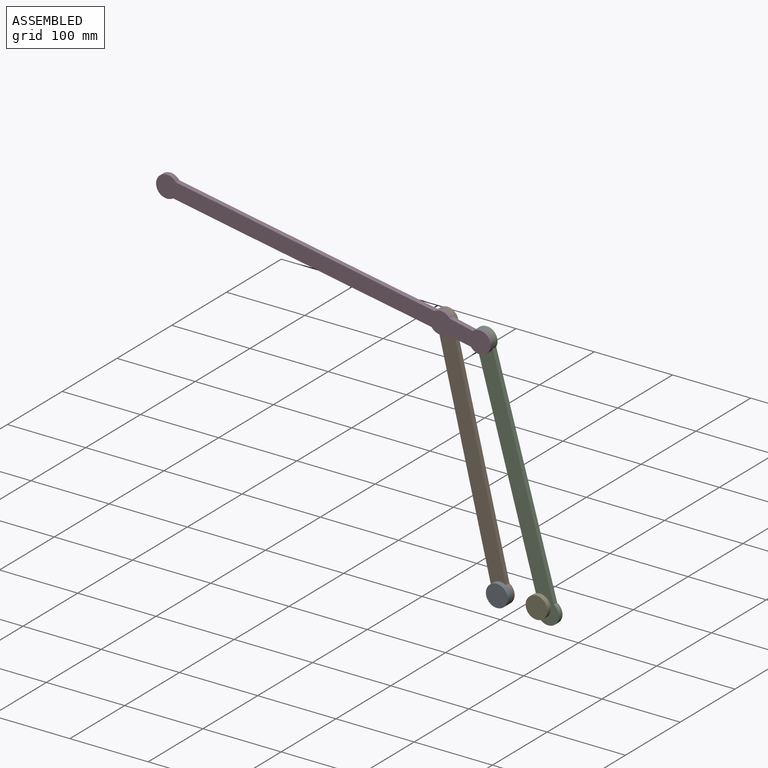
[diagram: assembled view]
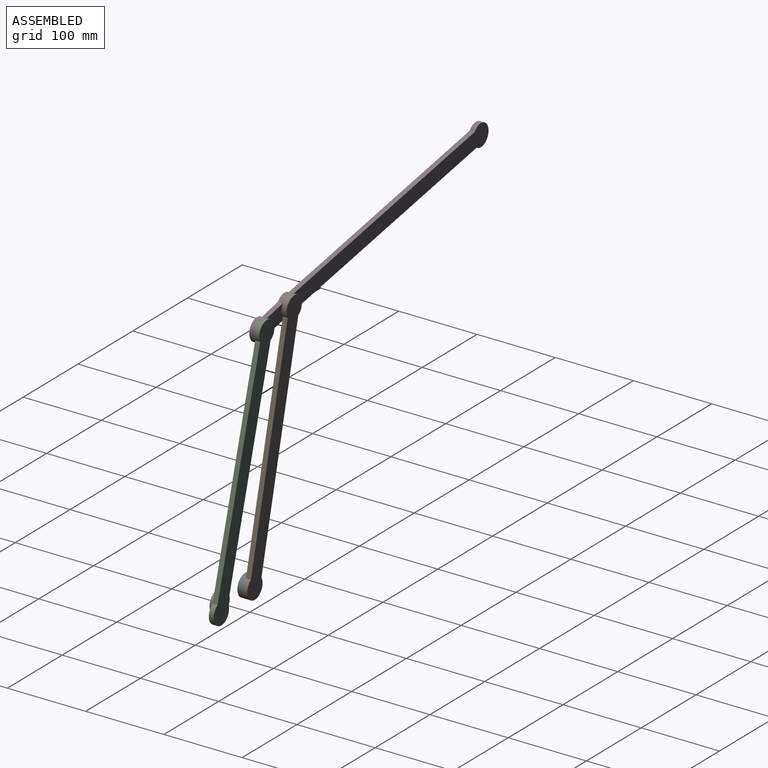
[diagram: assembled view, second angle]
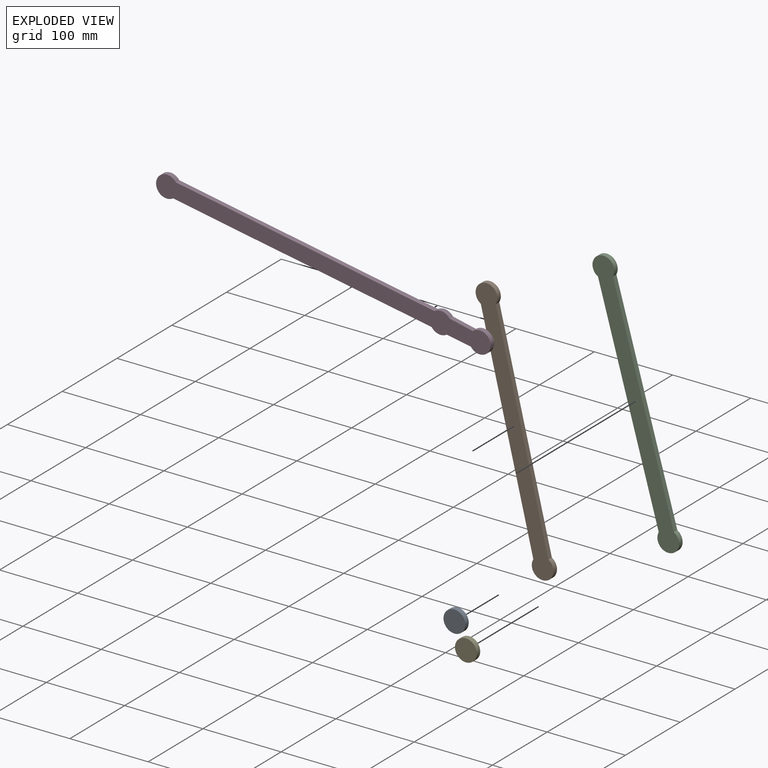
[diagram: exploded view]
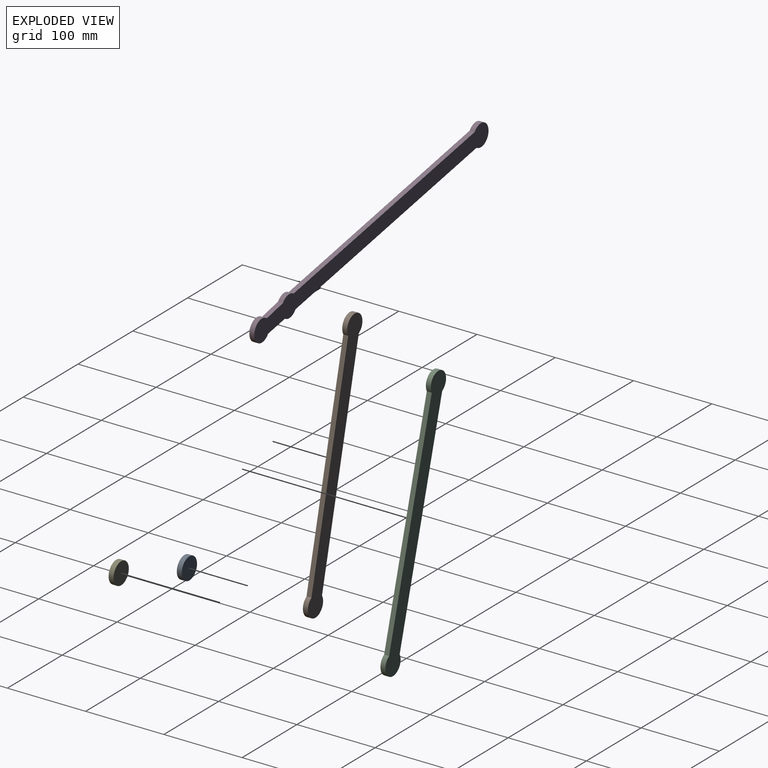
[diagram: exploded view, second angle]
ASSEMBLY  parts=5 mates=4
PART A: 3 faces, bbox 27.8x6.4x27.8 mm
  f0: cylinder r=13.92mm len=27.85mm, axis (0,1,0), area 555.6mm2, adj f1,f2
  f1: plane 27.85x27.85mm, normal (0,-1,0), area 609.1mm2, adj f0
  f2: plane 27.85x27.85mm, normal (0,1,0), area 609.1mm2, adj f0
PART B: 8 faces, bbox 27.8x6.4x332.6 mm
  f0: plane 6.35x0.09mm, normal (0,0,1), area 0.6mm2, adj f1,f5,f6,f7
  f1: cylinder r=13.92mm len=27.85mm, axis (0,-1,0), area 417.5mm2, adj f0,f2,f6,f7
  f2: plane 6.35x0.09mm, normal (0,0,1), area 0.6mm2, adj f1,f3,f6,f7
  f3: plane 285.11x6.35mm, normal (-1,0,0), area 1810.4mm2, adj f2,f4,f6,f7
  f4: cylinder r=13.92mm len=27.85mm, axis (0,-1,0), area 415.8mm2, adj f3,f5,f6,f7
  f5: plane 285.11x6.35mm, normal (1,0,0), area 1810.4mm2, adj f0,f4,f6,f7
  f6: plane 332.65x27.85mm, normal (0,1,0), area 6748.3mm2, adj f0,f1,f2,f3,f4,f5
  f7: plane 332.65x27.85mm, normal (0,-1,0), area 6748.3mm2, adj f0,f1,f2,f3,f4,f5
PART C: 7 faces, bbox 27.8x6.4x332.6 mm
  f0: cylinder r=13.92mm len=27.85mm, axis (0,-1,0), area 413.8mm2, adj f1,f4,f5,f6
  f1: plane 285.43x6.35mm, normal (1,0,0), area 1812.5mm2, adj f0,f2,f5,f6
  f2: cylinder r=13.92mm len=27.85mm, axis (0,-1,0), area 416.7mm2, adj f1,f3,f5,f6
  f3: plane 6.35x0.09mm, normal (0,0,1), area 0.6mm2, adj f2,f4,f5,f6
  f4: plane 285.11x6.35mm, normal (-1,0,0), area 1810.4mm2, adj f0,f3,f5,f6
  f5: plane 332.65x27.85mm, normal (0,1,0), area 6779.6mm2, adj f0,f1,f2,f3,f4
  f6: plane 332.65x27.85mm, normal (0,-1,0), area 6779.6mm2, adj f0,f1,f2,f3,f4
PART D: 13 faces, bbox 434.2x6.4x27.8 mm
  f0: plane 6.35x0.09mm, normal (1,0,0), area 0.6mm2, adj f1,f10,f11,f12
  f1: cylinder r=13.92mm len=19.78mm, axis (0,1,0), area 139.7mm2, adj f0,f2,f11,f12
  f2: plane 6.35x0.09mm, normal (-1,0,0), area 0.6mm2, adj f1,f3,f11,f12
  f3: plane 31.02x6.35mm, normal (0,0,-1), area 196.9mm2, adj f2,f4,f11,f12
  f4: plane 6.35x0.09mm, normal (1,0,0), area 0.6mm2, adj f3,f5,f11,f12
  f5: cylinder r=13.92mm len=27.85mm, axis (0,1,0), area 425.6mm2, adj f4,f6,f11,f12
  f6: plane 30.25x6.35mm, normal (0.03,0,1), area 192.2mm2, adj f5,f7,f11,f12
  f7: cylinder r=13.92mm len=19.6mm, axis (0,1,0), area 138.1mm2, adj f6,f8,f11,f12
  f8: plane 336x6.35mm, normal (0,0,1), area 2133.6mm2, adj f7,f9,f11,f12
  f9: cylinder r=13.92mm len=27.85mm, axis (0,1,0), area 415.8mm2, adj f8,f10,f11,f12
  f10: plane 335.91x6.35mm, normal (0,0,-1), area 2133mm2, adj f0,f9,f11,f12
  f11: plane 434.25x27.85mm, normal (0,-1,0), area 8851mm2, adj f0,f1,f2,f3,f4,f5,f6,f7
  f12: plane 434.25x27.85mm, normal (0,1,0), area 8851mm2, adj f0,f1,f2,f3,f4,f5,f6,f7
PART E: 3 faces, bbox 27.8x6.4x27.8 mm
  f0: cylinder r=13.92mm len=27.85mm, axis (0,1,0), area 555.6mm2, adj f1,f2
  f1: plane 27.85x27.85mm, normal (0,-1,0), area 609.1mm2, adj f0
  f2: plane 27.85x27.85mm, normal (0,1,0), area 609.1mm2, adj f0
PLACE A at identity fixed
PLACE B rot(axis=(0,-1,0),13.6deg) t=(0,0,0)mm
PLACE C rot(axis=(0,-1,0),15.8deg) t=(12.29,0,-20.01)mm
PLACE D rot(axis=(0,1,0),10.3deg) t=(-126.48,0,-3.62)mm
PLACE E at identity fixed
MATE revolute B.f1 <-> D.f7  axis (0,-1,0) through (-71.76,0,296.23)mm
MATE revolute A.f0 <-> B.f4  axis (0,1,0) through (0,0,0)mm
MATE revolute C.f6 <-> E.f2  axis (0,-1,0) through (50.8,0,30.48)mm
MATE revolute C.f2 <-> D.f5  axis (0,-1,0) through (-21.79,0,287.11)mm
